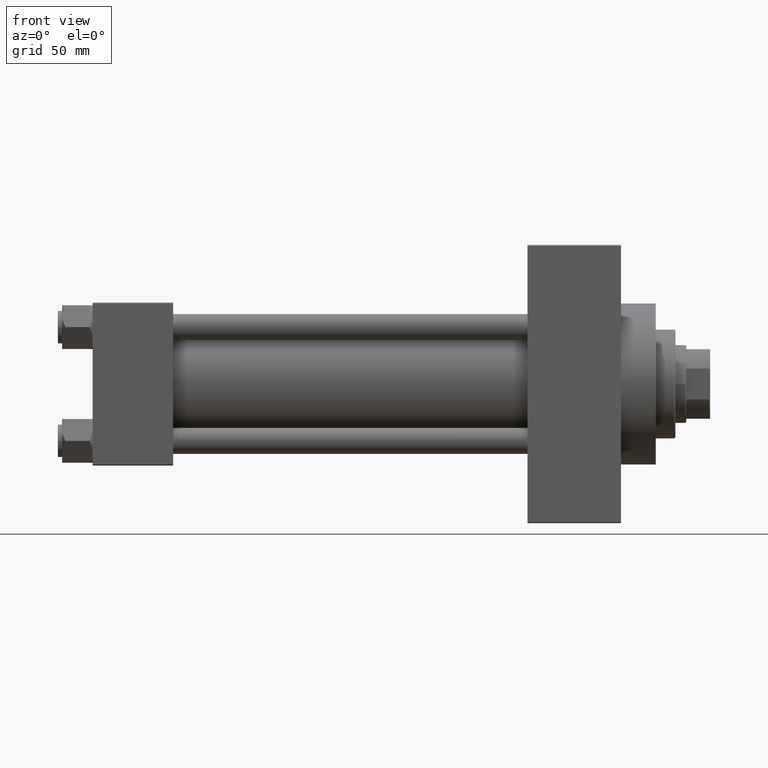
[diagram: clean part render]
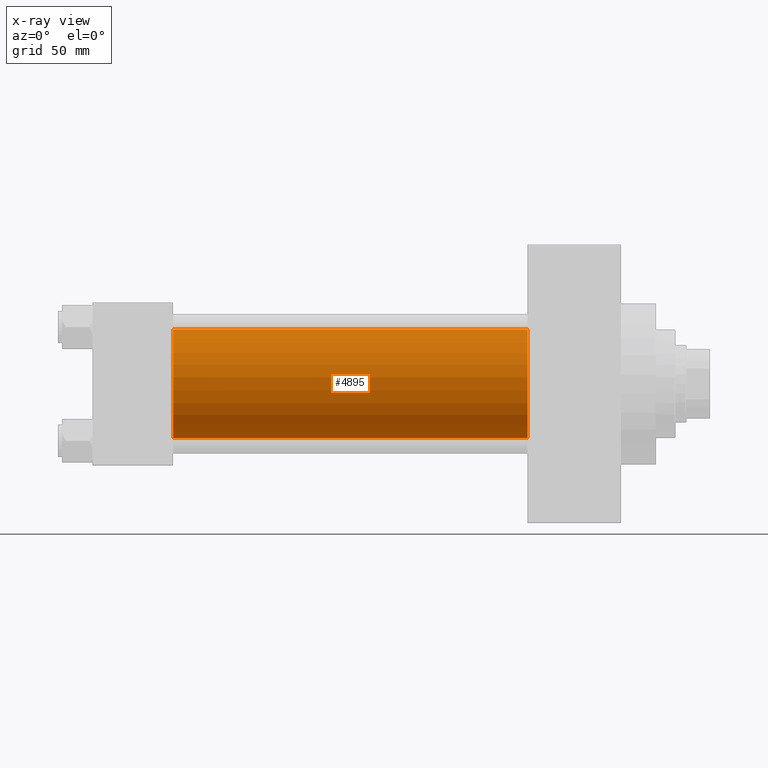
[diagram: x-ray — body ghosted, one internal face saturated and labeled with its STEP entity id]
A machine part, front view, then the same camera in x-ray: the body is ghosted and one INTERNAL B-rep face — a face not visible from any outside direction — is saturated and labeled: STEP entity #4895.
In plain terms, the highlighted cylindrical surface (partial cylindrical patch) has radius 25 mm, axis along (-1, -0, -0).
Its self-contained STEP definition (entity closure, byte-faithful):
#1426 = CARTESIAN_POINT ( 'NONE',  ( 37.00000000000000000, -2.602085213965210642E-15, 0.000000000000000000 ) ) ;
#1920 = ORIENTED_EDGE ( 'NONE', *, *, #3279, .F. ) ;
#2225 = DIRECTION ( 'NONE',  ( 1.000000000000000000, 0.000000000000000000, 0.000000000000000000 ) ) ;
#3279 = EDGE_CURVE ( 'NONE', #25241, #39958, #47837, .T. ) ;
#4895 = ADVANCED_FACE ( 'NONE', ( #26585 ), #7523, .F. ) ;
#5864 = ORIENTED_EDGE ( 'NONE', *, *, #9655, .F. ) ;
#6144 = CARTESIAN_POINT ( 'NONE',  ( 200.0000000000000000, -2.602085213965210642E-15, 25.00000000000000000 ) ) ;
#7523 = CYLINDRICAL_SURFACE ( 'NONE', #49371, 25.00000000000000000 ) ;
#9655 = EDGE_CURVE ( 'NONE', #38463, #25241, #17436, .T. ) ;
#12045 = CARTESIAN_POINT ( 'NONE',  ( 37.00000000000000000, 4.595317839031724996E-16, -25.00000000000000000 ) ) ;
#14175 = DIRECTION ( 'NONE',  ( -1.000000000000000000, -0.000000000000000000, -0.000000000000000000 ) ) ;
#17436 = LINE ( 'NONE', #6144, #37526 ) ;
#17526 = DIRECTION ( 'NONE',  ( 0.000000000000000000, 0.000000000000000000, -1.000000000000000000 ) ) ;
#19492 = EDGE_CURVE ( 'NONE', #47255, #39958, #25438, .T. ) ;
#19561 = AXIS2_PLACEMENT_3D ( 'NONE', #21281, #2225, #17526 ) ;
#20392 = CIRCLE ( 'NONE', #19561, 25.00000000000000000 ) ;
#21281 = CARTESIAN_POINT ( 'NONE',  ( 200.0000000000000000, -2.602085213965210642E-15, 0.000000000000000000 ) ) ;
#23425 = ORIENTED_EDGE ( 'NONE', *, *, #19492, .T. ) ;
#24478 = DIRECTION ( 'NONE',  ( 1.000000000000000000, 0.000000000000000000, 0.000000000000000000 ) ) ;
#25241 = VERTEX_POINT ( 'NONE', #45219 ) ;
#25438 = LINE ( 'NONE', #33196, #44487 ) ;
#26585 = FACE_OUTER_BOUND ( 'NONE', #38454, .T. ) ;
#26817 = DIRECTION ( 'NONE',  ( -1.000000000000000000, -0.000000000000000000, -0.000000000000000000 ) ) ;
#27815 = AXIS2_PLACEMENT_3D ( 'NONE', #1426, #24478, #47799 ) ;
#33196 = CARTESIAN_POINT ( 'NONE',  ( 200.0000000000000000, 4.595317839031724996E-16, -25.00000000000000000 ) ) ;
#35127 = ORIENTED_EDGE ( 'NONE', *, *, #43140, .T. ) ;
#36655 = CARTESIAN_POINT ( 'NONE',  ( 200.0000000000000000, -2.602085213965210642E-15, 25.00000000000000000 ) ) ;
#37526 = VECTOR ( 'NONE', #14175, 1000.000000000000000 ) ;
#38454 = EDGE_LOOP ( 'NONE', ( #35127, #23425, #1920, #5864 ) ) ;
#38463 = VERTEX_POINT ( 'NONE', #36655 ) ;
#39958 = VERTEX_POINT ( 'NONE', #12045 ) ;
#42110 = DIRECTION ( 'NONE',  ( 0.000000000000000000, 0.000000000000000000, 1.000000000000000000 ) ) ;
#43140 = EDGE_CURVE ( 'NONE', #38463, #47255, #20392, .T. ) ;
#44487 = VECTOR ( 'NONE', #48504, 1000.000000000000000 ) ;
#45219 = CARTESIAN_POINT ( 'NONE',  ( 37.00000000000000000, -2.602085213965210642E-15, 25.00000000000000000 ) ) ;
#45409 = CARTESIAN_POINT ( 'NONE',  ( 200.0000000000000000, -2.602085213965210642E-15, 0.000000000000000000 ) ) ;
#45451 = CARTESIAN_POINT ( 'NONE',  ( 200.0000000000000000, 4.595317839031724996E-16, -25.00000000000000000 ) ) ;
#47255 = VERTEX_POINT ( 'NONE', #45451 ) ;
#47799 = DIRECTION ( 'NONE',  ( 0.000000000000000000, 0.000000000000000000, -1.000000000000000000 ) ) ;
#47837 = CIRCLE ( 'NONE', #27815, 25.00000000000000000 ) ;
#48504 = DIRECTION ( 'NONE',  ( -1.000000000000000000, -0.000000000000000000, -0.000000000000000000 ) ) ;
#49371 = AXIS2_PLACEMENT_3D ( 'NONE', #45409, #26817, #42110 ) ;